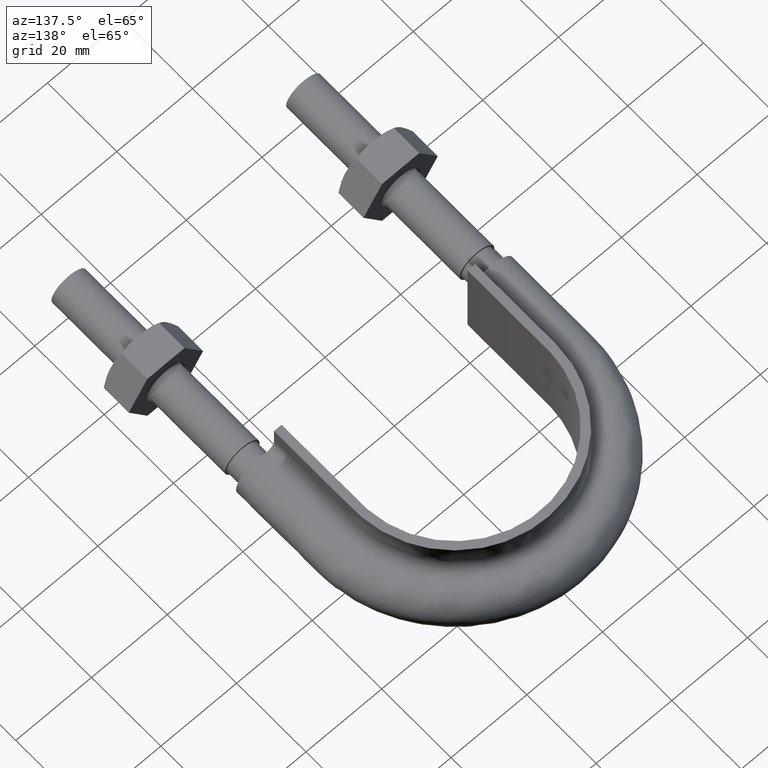
[diagram: clean part render]
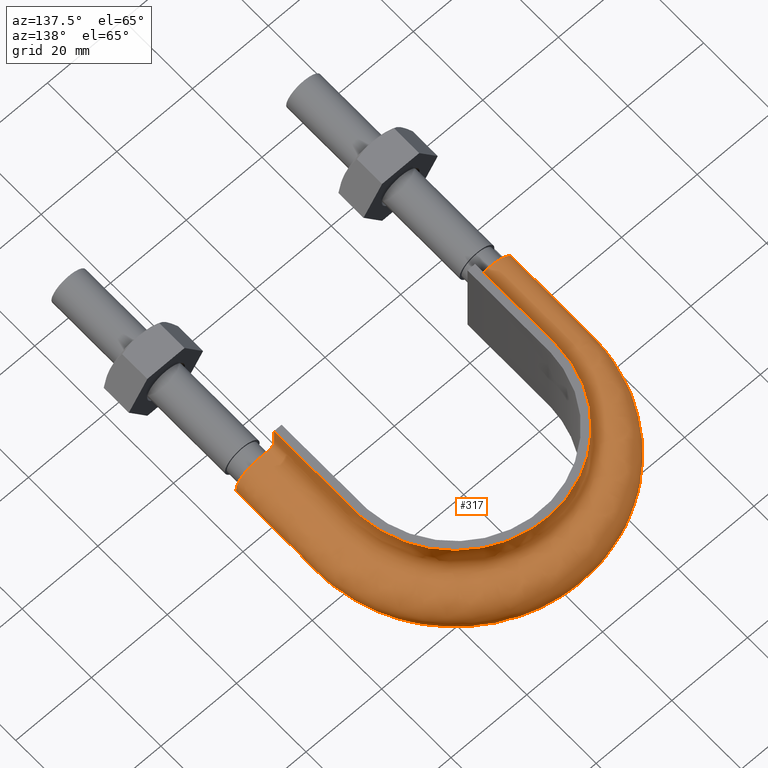
[diagram: same view with one face highlighted and labeled with its STEP entity id]
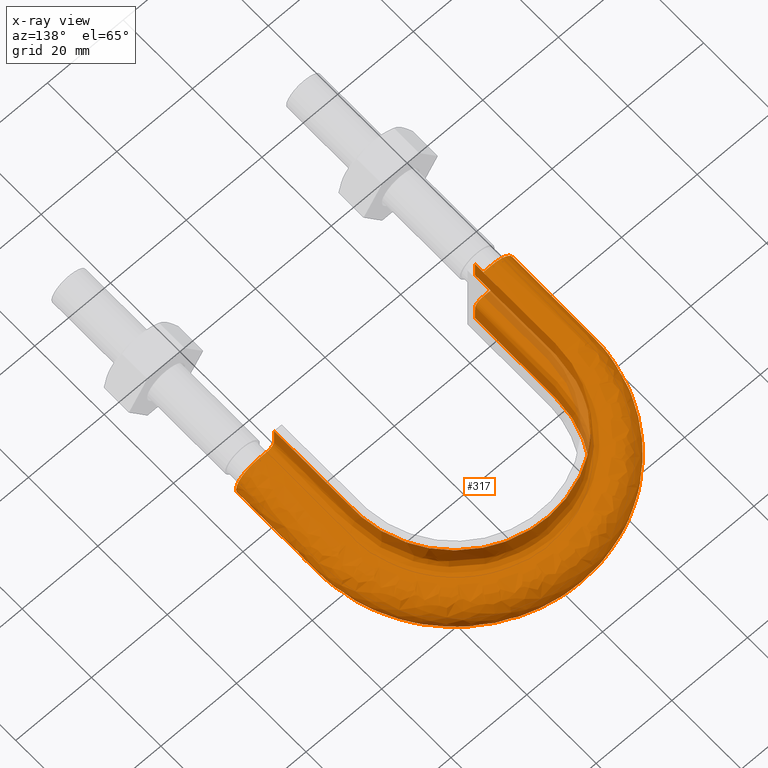
[diagram: x-ray of the same camera — body ghosted, the highlighted face saturated]
A machine part, auxiliary view. The second image highlights one B-rep face of the part: STEP entity #317.
The next image is the same camera in x-ray: the body ghosted, the highlighted face saturated — about 4% of this face is hidden behind the body in this view.
In plain terms, the highlighted face is a freeform B-spline surface patch.
Its self-contained STEP definition (entity closure, byte-faithful):
#317 = ADVANCED_FACE( '', ( #399 ), #400, .F. );
#399 = FACE_OUTER_BOUND( '', #573, .T. );
#400 = B_SPLINE_SURFACE_WITH_KNOTS( '', 3, 3, ( ( #574, #575, #576, #577, #578, #579, #580, #581, #582, #583, #584, #585, #586, #587, #588, #589, #590 ), ( #591, #592, #593, #594, #595, #596, #597, #598, #599, #600, #601, #602, #603, #604, #605, #606, #607 ), ( #608, #609, #610, #611, #612, #613, #614, #615, #616, #617, #618, #619, #620, #621, #622, #623, #624 ), ( #625, #626, #627, #628, #629, #630, #631, #632, #633, #634, #635, #636, #637, #638, #639, #640, #641 ), ( #642, #643, #644, #645, #646, #647, #648, #649, #650, #651, #652, #653, #654, #655, #656, #657, #658 ), ( #659, #660, #661, #662, #663, #664, #665, #666, #667, #668, #669, #670, #671, #672, #673, #674, #675 ), ( #676, #677, #678, #679, #680, #681, #682, #683, #684, #685, #686, #687, #688, #689, #690, #691, #692 ), ( #693, #694, #695, #696, #697, #698, #699, #700, #701, #702, #703, #704, #705, #706, #707, #708, #709 ), ( #710, #711, #712, #713, #714, #715, #716, #717, #718, #719, #720, #721, #722, #723, #724, #725, #726 ), ( #727, #728, #729, #730, #731, #732, #733, #734, #735, #736, #737, #738, #739, #740, #741, #742, #743 ), ( #744, #745, #746, #747, #748, #749, #750, #751, #752, #753, #754, #755, #756, #757, #758, #759, #760 ), ( #761, #762, #763, #764, #765, #766, #767, #768, #769, #770, #771, #772, #773, #774, #775, #776, #777 ), ( #778, #779, #780, #781, #782, #783, #784, #785, #786, #787, #788, #789, #790, #791, #792, #793, #794 ), ( #795, #796, #797, #798, #799, #800, #801, #802, #803, #804, #805, #806, #807, #808, #809, #810, #811 ), ( #812, #813, #814, #815, #816, #817, #818, #819, #820, #821, #822, #823, #824, #825, #826, #827, #828 ), ( #829, #830, #831, #832, #833, #834, #835, #836, #837, #838, #839, #840, #841, #842, #843, #844, #845 ), ( #846, #847, #848, #849, #850, #851, #852, #853, #854, #855, #856, #857, #858, #859, #860, #861, #862 ), ( #863, #864, #865, #866, #867, #868, #869, #870, #871, #872, #873, #874, #875, #876, #877, #878, #879 ), ( #880, #881, #882, #883, #884, #885, #886, #887, #888, #889, #890, #891, #892, #893, #894, #895, #896 ), ( #897, #898, #899, #900, #901, #902, #903, #904, #905, #906, #907, #908, #909, #910, #911, #912, #913 ), ( #914, #915, #916, #917, #918, #919, #920, #921, #922, #923, #924, #925, #926, #927, #928, #929, #930 ), ( #931, #932, #933, #934, #935, #936, #937, #938, #939, #940, #941, #942, #943, #944, #945, #946, #947 ), ( #948, #949, #950, #951, #952, #953, #954, #955, #956, #957, #958, #959, #960, #961, #962, #963, #964 ), ( #965, #966, #967, #968, #969, #970, #971, #972, #973, #974, #975, #976, #977, #978, #979, #980, #981 ), ( #982, #983, #984, #985, #986, #987, #988, #989, #990, #991, #992, #993, #994, #995, #996, #997, #998 ), ( #999, #1000, #1001, #1002, #1003, #1004, #1005, #1006, #1007, #1008, #1009, #1010, #1011, #1012, #1013, #1014, #1015 ), ( #1016, #1017, #1018, #1019, #1020, #1021, #1022, #1023, #1024, #1025, #1026, #1027, #1028, #1029, #1030, #1031, #1032 ), ( #1033, #1034, #1035, #1036, #1037, #1038, #1039, #1040, #1041, #1042, #1043, #1044, #1045, #1046, #1047, #1048, #1049 ), ( #1050, #1051, #1052, #1053, #1054, #1055, #1056, #1057, #1058, #1059, #1060, #1061, #1062, #1063, #1064, #1065, #1066 ), ( #1067, #1068, #1069, #1070, #1071, #1072, #1073, #1074, #1075, #1076, #1077, #1078, #1079, #1080, #1081, #1082, #1083 ), ( #1084, #1085, #1086, #1087, #1088, #1089, #1090, #1091, #1092, #1093, #1094, #1095, #1096, #1097, #1098, #1099, #1100 ) ), .UNSPECIFIED., .F., .F., .F., ( 4, 3, 1, 1, 1, 3, 3, 1, 1, 1, 3, 3, 1, 1, 1, 3, 4 ), ( 4, 3, 1, 1, 1, 1, 1, 1, 1, 3, 4 ), ( 0.000000000000000, 0.0526315789473684, 0.105263157894737, 0.157894736842105, 0.210526315789474, 0.263157894736842, 0.315789473684211, 0.368421052631579, 0.421052631578947, 0.473684210526316, 0.526315789473684, 0.578947368421053, 0.631578947368421, 0.684210526315789, 0.736842105263158, 0.789473684210526, 0.842105263157895 ), ( 0.000000000000000, 1.00000000000000, 1.50000000000000, 2.00000000000000, 3.00000000000000, 4.00000000000000, 5.00000000000000, 6.00000000000000, 6.50000000000000, 7.00000000000000, 8.00000000000000 ), .UNSPECIFIED. );
#573 = EDGE_LOOP( '', ( #1582, #1583, #1584, #1585 ) );
#574 = CARTESIAN_POINT( '', ( -26.5500000000000, 50.3500000000000, 12.5000000000000 ) );
#575 = CARTESIAN_POINT( '', ( -26.5500000000000, 59.3833333333333, 12.5000000000000 ) );
#576 = CARTESIAN_POINT( '', ( -26.5500000000000, 68.4166666666667, 12.5000000000000 ) );
#577 = CARTESIAN_POINT( '', ( -26.5500000000000, 77.4500000000000, 12.5000000000000 ) );
#578 = CARTESIAN_POINT( '', ( -26.5500000000000, 79.7566352991258, 12.5000000000000 ) );
#579 = CARTESIAN_POINT( '', ( -25.9278217826460, 84.4015410955847, 12.5000000000000 ) );
#580 = CARTESIAN_POINT( '', ( -22.3733615438456, 93.0387447403505, 12.5000000000000 ) );
#581 = CARTESIAN_POINT( '', ( -13.8952542493119, 101.518591858921, 12.5000000000000 ) );
#582 = CARTESIAN_POINT( '', ( 2.02604182614537E-014, 105.240704070539, 12.5000000000000 ) );
#583 = CARTESIAN_POINT( '', ( 13.8952542493119, 101.518591858921, 12.5000000000000 ) );
#584 = CARTESIAN_POINT( '', ( 22.3733615438457, 93.0387447403505, 12.5000000000000 ) );
#585 = CARTESIAN_POINT( '', ( 25.9278217826460, 84.4015410955847, 12.5000000000000 ) );
#586 = CARTESIAN_POINT( '', ( 26.5500000000000, 79.7566352991258, 12.5000000000000 ) );
#587 = CARTESIAN_POINT( '', ( 26.5500000000000, 77.4500000000000, 12.5000000000000 ) );
#588 = CARTESIAN_POINT( '', ( 26.5500000000000, 68.4166666666667, 12.5000000000000 ) );
#589 = CARTESIAN_POINT( '', ( 26.5500000000000, 59.3833333333333, 12.5000000000000 ) );
#590 = CARTESIAN_POINT( '', ( 26.5500000000000, 50.3500000000000, 12.5000000000000 ) );
#591 = CARTESIAN_POINT( '', ( -26.5500000000000, 50.3500000000000, 10.8666666666667 ) );
#592 = CARTESIAN_POINT( '', ( -26.5500000000000, 59.3833333333333, 10.8666666666667 ) );
#593 = CARTESIAN_POINT( '', ( -26.5500000000000, 68.4166666666667, 10.8666666666667 ) );
#594 = CARTESIAN_POINT( '', ( -26.5500000000000, 77.4500000000000, 10.8666666666667 ) );
#595 = CARTESIAN_POINT( '', ( -26.5500000000000, 79.7566352991258, 10.8666666666667 ) );
#596 = CARTESIAN_POINT( '', ( -25.9278217826460, 84.4015410955847, 10.8666666666667 ) );
#597 = CARTESIAN_POINT( '', ( -22.3733615438456, 93.0387447403505, 10.8666666666667 ) );
#598 = CARTESIAN_POINT( '', ( -13.8952542493119, 101.518591858921, 10.8666666666667 ) );
#599 = CARTESIAN_POINT( '', ( 2.19951417374305E-014, 105.240704070539, 10.8666666666667 ) );
#600 = CARTESIAN_POINT( '', ( 13.8952542493119, 101.518591858921, 10.8666666666667 ) );
#601 = CARTESIAN_POINT( '', ( 22.3733615438457, 93.0387447403505, 10.8666666666667 ) );
#602 = CARTESIAN_POINT( '', ( 25.9278217826460, 84.4015410955847, 10.8666666666667 ) );
#603 = CARTESIAN_POINT( '', ( 26.5500000000000, 79.7566352991258, 10.8666666666667 ) );
#604 = CARTESIAN_POINT( '', ( 26.5500000000000, 77.4500000000000, 10.8666666666667 ) );
#605 = CARTESIAN_POINT( '', ( 26.5500000000000, 68.4166666666667, 10.8666666666667 ) );
#606 = CARTESIAN_POINT( '', ( 26.5500000000000, 59.3833333333333, 10.8666666666667 ) );
#607 = CARTESIAN_POINT( '', ( 26.5500000000000, 50.3500000000000, 10.8666666666667 ) );
#608 = CARTESIAN_POINT( '', ( -26.5500000000000, 50.3500000000000, 9.23333333333333 ) );
#609 = CARTESIAN_POINT( '', ( -26.5500000000000, 59.3833333333333, 9.23333333333333 ) );
#610 = CARTESIAN_POINT( '', ( -26.5500000000000, 68.4166666666667, 9.23333333333333 ) );
#611 = CARTESIAN_POINT( '', ( -26.5500000000000, 77.4500000000000, 9.23333333333333 ) );
#612 = CARTESIAN_POINT( '', ( -26.5500000000000, 79.7566352991258, 9.23333333333333 ) );
#613 = CARTESIAN_POINT( '', ( -25.9278217826460, 84.4015410955847, 9.23333333333332 ) );
#614 = CARTESIAN_POINT( '', ( -22.3733615438456, 93.0387447403505, 9.23333333333335 ) );
#615 = CARTESIAN_POINT( '', ( -13.8952542493119, 101.518591858921, 9.23333333333332 ) );
#616 = CARTESIAN_POINT( '', ( 2.15614608684363E-014, 105.240704070539, 9.23333333333334 ) );
#617 = CARTESIAN_POINT( '', ( 13.8952542493119, 101.518591858921, 9.23333333333332 ) );
#618 = CARTESIAN_POINT( '', ( 22.3733615438457, 93.0387447403505, 9.23333333333334 ) );
#619 = CARTESIAN_POINT( '', ( 25.9278217826460, 84.4015410955847, 9.23333333333333 ) );
#620 = CARTESIAN_POINT( '', ( 26.5500000000000, 79.7566352991258, 9.23333333333333 ) );
#621 = CARTESIAN_POINT( '', ( 26.5500000000000, 77.4500000000000, 9.23333333333333 ) );
#622 = CARTESIAN_POINT( '', ( 26.5500000000000, 68.4166666666667, 9.23333333333333 ) );
#623 = CARTESIAN_POINT( '', ( 26.5500000000000, 59.3833333333333, 9.23333333333333 ) );
#624 = CARTESIAN_POINT( '', ( 26.5500000000000, 50.3500000000000, 9.23333333333333 ) );
#625 = CARTESIAN_POINT( '', ( -26.5500000000000, 50.3500000000000, 7.59999999999999 ) );
#626 = CARTESIAN_POINT( '', ( -26.5500000000000, 59.3833333333333, 7.59999999999999 ) );
#627 = CARTESIAN_POINT( '', ( -26.5500000000000, 68.4166666666667, 7.59999999999999 ) );
#628 = CARTESIAN_POINT( '', ( -26.5500000000000, 77.4500000000000, 7.59999999999999 ) );
#629 = CARTESIAN_POINT( '', ( -26.5500000000000, 79.7566352991258, 7.60000000000000 ) );
#630 = CARTESIAN_POINT( '', ( -25.9278217826459, 84.4015410955847, 7.59999999999998 ) );
#631 = CARTESIAN_POINT( '', ( -22.3733615438456, 93.0387447403505, 7.60000000000001 ) );
#632 = CARTESIAN_POINT( '', ( -13.8952542493119, 101.518591858921, 7.59999999999999 ) );
#633 = CARTESIAN_POINT( '', ( 2.24288226064247E-014, 105.240704070539, 7.60000000000000 ) );
#634 = CARTESIAN_POINT( '', ( 13.8952542493119, 101.518591858921, 7.59999999999999 ) );
#635 = CARTESIAN_POINT( '', ( 22.3733615438457, 93.0387447403505, 7.60000000000000 ) );
#636 = CARTESIAN_POINT( '', ( 25.9278217826460, 84.4015410955847, 7.59999999999999 ) );
#637 = CARTESIAN_POINT( '', ( 26.5500000000000, 79.7566352991258, 7.60000000000000 ) );
#638 = CARTESIAN_POINT( '', ( 26.5500000000000, 77.4500000000000, 7.60000000000000 ) );
#639 = CARTESIAN_POINT( '', ( 26.5500000000000, 68.4166666666667, 7.59999999999999 ) );
#640 = CARTESIAN_POINT( '', ( 26.5500000000000, 59.3833333333333, 7.59999999999999 ) );
#641 = CARTESIAN_POINT( '', ( 26.5500000000000, 50.3500000000000, 7.59999999999999 ) );
#642 = CARTESIAN_POINT( '', ( -26.5500000000000, 50.3500000000000, 7.33823584172332 ) );
#643 = CARTESIAN_POINT( '', ( -26.5500000000000, 59.3833333333333, 7.33823584172332 ) );
#644 = CARTESIAN_POINT( '', ( -26.5500000000000, 68.4166666666667, 7.33823584172332 ) );
#645 = CARTESIAN_POINT( '', ( -26.5500000000000, 77.4500000000000, 7.33823584172332 ) );
#646 = CARTESIAN_POINT( '', ( -26.5500000000000, 79.7566352991258, 7.33823584172333 ) );
#647 = CARTESIAN_POINT( '', ( -25.9278217826460, 84.4015410955847, 7.33823584172332 ) );
#648 = CARTESIAN_POINT( '', ( -22.3733615438456, 93.0387447403505, 7.33823584172334 ) );
#649 = CARTESIAN_POINT( '', ( -13.8952542493119, 101.518591858921, 7.33823584172332 ) );
#650 = CARTESIAN_POINT( '', ( 2.02604182614537E-014, 105.240704070539, 7.33823584172333 ) );
#651 = CARTESIAN_POINT( '', ( 13.8952542493119, 101.518591858921, 7.33823584172332 ) );
#652 = CARTESIAN_POINT( '', ( 22.3733615438457, 93.0387447403505, 7.33823584172333 ) );
#653 = CARTESIAN_POINT( '', ( 25.9278217826460, 84.4015410955847, 7.33823584172332 ) );
#654 = CARTESIAN_POINT( '', ( 26.5500000000000, 79.7566352991258, 7.33823584172333 ) );
#655 = CARTESIAN_POINT( '', ( 26.5500000000000, 77.4500000000000, 7.33823584172333 ) );
#656 = CARTESIAN_POINT( '', ( 26.5500000000000, 68.4166666666667, 7.33823584172332 ) );
#657 = CARTESIAN_POINT( '', ( 26.5500000000000, 59.3833333333333, 7.33823584172332 ) );
#658 = CARTESIAN_POINT( '', ( 26.5500000000000, 50.3500000000000, 7.33823584172332 ) );
#659 = CARTESIAN_POINT( '', ( -26.6541362568359, 50.3500000000000, 6.81470752517000 ) );
#660 = CARTESIAN_POINT( '', ( -26.6541362568359, 59.3833333333333, 6.81470752517000 ) );
#661 = CARTESIAN_POINT( '', ( -26.6541362568359, 68.4166666666667, 6.81470752517000 ) );
#662 = CARTESIAN_POINT( '', ( -26.6541362568359, 77.4500000000000, 6.81470752517000 ) );
#663 = CARTESIAN_POINT( '', ( -26.6541362568359, 79.7659363744331, 6.81470752517000 ) );
#664 = CARTESIAN_POINT( '', ( -26.0295621710036, 84.4287040133886, 6.81470752516999 ) );
#665 = CARTESIAN_POINT( '', ( -22.4610902878325, 93.0999475731550, 6.81470752517001 ) );
#666 = CARTESIAN_POINT( '', ( -13.9497632697654, 101.612973700931, 6.81470752516999 ) );
#667 = CARTESIAN_POINT( '', ( 2.24421724645219E-014, 105.349717534789, 6.81470752517001 ) );
#668 = CARTESIAN_POINT( '', ( 13.9497632697655, 101.612973700930, 6.81470752516999 ) );
#669 = CARTESIAN_POINT( '', ( 22.4610902878326, 93.0999475731550, 6.81470752517000 ) );
#670 = CARTESIAN_POINT( '', ( 26.0295621710036, 84.4287040133886, 6.81470752516999 ) );
#671 = CARTESIAN_POINT( '', ( 26.6541362568359, 79.7659363744331, 6.81470752517000 ) );
#672 = CARTESIAN_POINT( '', ( 26.6541362568359, 77.4500000000000, 6.81470752517000 ) );
#673 = CARTESIAN_POINT( '', ( 26.6541362568359, 68.4166666666667, 6.81470752517000 ) );
#674 = CARTESIAN_POINT( '', ( 26.6541362568359, 59.3833333333333, 6.81470752517000 ) );
#675 = CARTESIAN_POINT( '', ( 26.6541362568359, 50.3500000000000, 6.81470752517000 ) );
#676 = CARTESIAN_POINT( '', ( -27.0989687109389, 50.3500000000000, 6.14896871093887 ) );
#677 = CARTESIAN_POINT( '', ( -27.0989687109389, 59.3833333333333, 6.14896871093887 ) );
#678 = CARTESIAN_POINT( '', ( -27.0989687109389, 68.4166666666667, 6.14896871093887 ) );
#679 = CARTESIAN_POINT( '', ( -27.0989687109389, 77.4500000000000, 6.14896871093887 ) );
#680 = CARTESIAN_POINT( '', ( -27.0989687109389, 79.8056672067145, 6.14896871093887 ) );
#681 = CARTESIAN_POINT( '', ( -26.4641603408403, 84.5447341815013, 6.14896871093886 ) );
#682 = CARTESIAN_POINT( '', ( -22.8358357767600, 93.3613839560413, 6.14896871093888 ) );
#683 = CARTESIAN_POINT( '', ( -14.1826061054485, 102.016138820163, 6.14896871093886 ) );
#684 = CARTESIAN_POINT( '', ( 2.24991982336415E-014, 105.815383656327, 6.14896871093887 ) );
#685 = CARTESIAN_POINT( '', ( 14.1826061054486, 102.016138820163, 6.14896871093886 ) );
#686 = CARTESIAN_POINT( '', ( 22.8358357767601, 93.3613839560413, 6.14896871093887 ) );
#687 = CARTESIAN_POINT( '', ( 26.4641603408403, 84.5447341815013, 6.14896871093886 ) );
#688 = CARTESIAN_POINT( '', ( 27.0989687109389, 79.8056672067145, 6.14896871093887 ) );
#689 = CARTESIAN_POINT( '', ( 27.0989687109389, 77.4500000000000, 6.14896871093887 ) );
#690 = CARTESIAN_POINT( '', ( 27.0989687109389, 68.4166666666666, 6.14896871093887 ) );
#691 = CARTESIAN_POINT( '', ( 27.0989687109389, 59.3833333333333, 6.14896871093887 ) );
#692 = CARTESIAN_POINT( '', ( 27.0989687109389, 50.3500000000000, 6.14896871093887 ) );
#693 = CARTESIAN_POINT( '', ( -27.7647075251700, 50.3500000000000, 5.70413625683590 ) );
#694 = CARTESIAN_POINT( '', ( -27.7647075251700, 59.3833333333333, 5.70413625683590 ) );
#695 = CARTESIAN_POINT( '', ( -27.7647075251700, 68.4166666666667, 5.70413625683590 ) );
#696 = CARTESIAN_POINT( '', ( -27.7647075251700, 77.4500000000000, 5.70413625683590 ) );
#697 = CARTESIAN_POINT( '', ( -27.7647075251700, 79.8651285992622, 5.70413625683590 ) );
#698 = CARTESIAN_POINT( '', ( -27.1145824662617, 84.7183855997418, 5.70413625683589 ) );
#699 = CARTESIAN_POINT( '', ( -23.3966820350219, 93.7526511532393, 5.70413625683591 ) );
#700 = CARTESIAN_POINT( '', ( -14.5310800351273, 102.619518060912, 5.70413625683589 ) );
#701 = CARTESIAN_POINT( '', ( 2.25845433283262E-014, 106.512302257299, 5.70413625683590 ) );
#702 = CARTESIAN_POINT( '', ( 14.5310800351273, 102.619518060912, 5.70413625683589 ) );
#703 = CARTESIAN_POINT( '', ( 23.3966820350219, 93.7526511532393, 5.70413625683590 ) );
#704 = CARTESIAN_POINT( '', ( 27.1145824662618, 84.7183855997418, 5.70413625683589 ) );
#705 = CARTESIAN_POINT( '', ( 27.7647075251700, 79.8651285992622, 5.70413625683590 ) );
#706 = CARTESIAN_POINT( '', ( 27.7647075251700, 77.4500000000000, 5.70413625683590 ) );
#707 = CARTESIAN_POINT( '', ( 27.7647075251700, 68.4166666666666, 5.70413625683590 ) );
#708 = CARTESIAN_POINT( '', ( 27.7647075251700, 59.3833333333333, 5.70413625683590 ) );
#709 = CARTESIAN_POINT( '', ( 27.7647075251700, 50.3500000000000, 5.70413625683590 ) );
#710 = CARTESIAN_POINT( '', ( -28.2882358417233, 50.3500000000000, 5.59999999999999 ) );
#711 = CARTESIAN_POINT( '', ( -28.2882358417233, 59.3833333333333, 5.59999999999999 ) );
#712 = CARTESIAN_POINT( '', ( -28.2882358417233, 68.4166666666667, 5.59999999999999 ) );
#713 = CARTESIAN_POINT( '', ( -28.2882358417233, 77.4500000000000, 5.59999999999999 ) );
#714 = CARTESIAN_POINT( '', ( -28.2882358417233, 79.9118882624740, 5.59999999999999 ) );
#715 = CARTESIAN_POINT( '', ( -27.6260659385964, 84.8549428091386, 5.59999999999998 ) );
#716 = CARTESIAN_POINT( '', ( -23.8377242142617, 94.0603385716275, 5.60000000000000 ) );
#717 = CARTESIAN_POINT( '', ( -14.8051153863305, 103.094007622585, 5.59999999999998 ) );
#718 = CARTESIAN_POINT( '', ( 2.52537428111177E-014, 107.060349951293, 5.60000000000000 ) );
#719 = CARTESIAN_POINT( '', ( 14.8051153863305, 103.094007622585, 5.59999999999998 ) );
#720 = CARTESIAN_POINT( '', ( 23.8377242142617, 94.0603385716275, 5.59999999999999 ) );
#721 = CARTESIAN_POINT( '', ( 27.6260659385965, 84.8549428091385, 5.59999999999999 ) );
#722 = CARTESIAN_POINT( '', ( 28.2882358417234, 79.9118882624740, 5.59999999999999 ) );
#723 = CARTESIAN_POINT( '', ( 28.2882358417234, 77.4500000000000, 5.59999999999999 ) );
#724 = CARTESIAN_POINT( '', ( 28.2882358417233, 68.4166666666666, 5.59999999999999 ) );
#725 = CARTESIAN_POINT( '', ( 28.2882358417233, 59.3833333333333, 5.59999999999999 ) );
#726 = CARTESIAN_POINT( '', ( 28.2882358417233, 50.3500000000000, 5.59999999999999 ) );
#727 = CARTESIAN_POINT( '', ( -28.5500000000000, 50.3500000000000, 5.59999999999999 ) );
#728 = CARTESIAN_POINT( '', ( -28.5500000000000, 59.3833333333333, 5.59999999999999 ) );
#729 = CARTESIAN_POINT( '', ( -28.5500000000000, 68.4166666666667, 5.59999999999999 ) );
#730 = CARTESIAN_POINT( '', ( -28.5500000000000, 77.4500000000000, 5.59999999999999 ) );
#731 = CARTESIAN_POINT( '', ( -28.5500000000000, 79.9352680940799, 5.59999999999999 ) );
#732 = CARTESIAN_POINT( '', ( -27.8818076747638, 84.9232214138370, 5.59999999999998 ) );
#733 = CARTESIAN_POINT( '', ( -24.0582453038816, 94.2141822808216, 5.60000000000000 ) );
#734 = CARTESIAN_POINT( '', ( -14.9421330619321, 103.331252403421, 5.59999999999998 ) );
#735 = CARTESIAN_POINT( '', ( 2.26852147315656E-014, 107.334373798290, 5.60000000000000 ) );
#736 = CARTESIAN_POINT( '', ( 14.9421330619321, 103.331252403421, 5.59999999999998 ) );
#737 = CARTESIAN_POINT( '', ( 24.0582453038817, 94.2141822808216, 5.59999999999999 ) );
#738 = CARTESIAN_POINT( '', ( 27.8818076747638, 84.9232214138369, 5.59999999999999 ) );
#739 = CARTESIAN_POINT( '', ( 28.5500000000000, 79.9352680940799, 5.59999999999999 ) );
#740 = CARTESIAN_POINT( '', ( 28.5500000000000, 77.4500000000000, 5.59999999999999 ) );
#741 = CARTESIAN_POINT( '', ( 28.5500000000000, 68.4166666666666, 5.59999999999999 ) );
#742 = CARTESIAN_POINT( '', ( 28.5500000000000, 59.3833333333333, 5.59999999999999 ) );
#743 = CARTESIAN_POINT( '', ( 28.5500000000000, 50.3500000000000, 5.59999999999999 ) );
#744 = CARTESIAN_POINT( '', ( -29.3666666666667, 50.3500000000000, 5.60000000000001 ) );
#745 = CARTESIAN_POINT( '', ( -29.3666666666667, 59.3833333333333, 5.60000000000001 ) );
#746 = CARTESIAN_POINT( '', ( -29.3666666666667, 68.4166666666667, 5.60000000000001 ) );
#747 = CARTESIAN_POINT( '', ( -29.3666666666667, 77.4500000000000, 5.60000000000001 ) );
#748 = CARTESIAN_POINT( '', ( -29.3666666666667, 80.0082098186861, 5.60000000000001 ) );
#749 = CARTESIAN_POINT( '', ( -28.6796852473785, 85.1362408771233, 5.60000000000000 ) );
#750 = CARTESIAN_POINT( '', ( -24.7462395058963, 94.6941526098473, 5.60000000000002 ) );
#751 = CARTESIAN_POINT( '', ( -15.3696085770853, 104.071422125758, 5.60000000000000 ) );
#752 = CARTESIAN_POINT( '', ( 2.01878229686996E-014, 108.189288937121, 5.60000000000001 ) );
#753 = CARTESIAN_POINT( '', ( 15.3696085770854, 104.071422125758, 5.60000000000000 ) );
#754 = CARTESIAN_POINT( '', ( 24.7462395058964, 94.6941526098473, 5.60000000000001 ) );
#755 = CARTESIAN_POINT( '', ( 28.6796852473786, 85.1362408771233, 5.60000000000000 ) );
#756 = CARTESIAN_POINT( '', ( 29.3666666666667, 80.0082098186861, 5.60000000000001 ) );
#757 = CARTESIAN_POINT( '', ( 29.3666666666667, 77.4500000000000, 5.60000000000001 ) );
#758 = CARTESIAN_POINT( '', ( 29.3666666666667, 68.4166666666667, 5.60000000000001 ) );
#759 = CARTESIAN_POINT( '', ( 29.3666666666667, 59.3833333333333, 5.60000000000001 ) );
#760 = CARTESIAN_POINT( '', ( 29.3666666666667, 50.3500000000000, 5.60000000000001 ) );
#761 = CARTESIAN_POINT( '', ( -30.1833333333333, 50.3500000000000, 5.60000000000001 ) );
#762 = CARTESIAN_POINT( '', ( -30.1833333333333, 59.3833333333333, 5.60000000000001 ) );
#763 = CARTESIAN_POINT( '', ( -30.1833333333333, 68.4166666666667, 5.60000000000001 ) );
#764 = CARTESIAN_POINT( '', ( -30.1833333333333, 77.4500000000000, 5.60000000000001 ) );
#765 = CARTESIAN_POINT( '', ( -30.1833333333333, 80.0811515432924, 5.60000000000001 ) );
#766 = CARTESIAN_POINT( '', ( -29.4775628199933, 85.3492603404096, 5.60000000000000 ) );
#767 = CARTESIAN_POINT( '', ( -25.4342337079110, 95.1741229388730, 5.60000000000002 ) );
#768 = CARTESIAN_POINT( '', ( -15.7970840922386, 104.811591848095, 5.60000000000000 ) );
#769 = CARTESIAN_POINT( '', ( 2.02925164197988E-014, 109.044204075952, 5.60000000000001 ) );
#770 = CARTESIAN_POINT( '', ( 15.7970840922386, 104.811591848095, 5.60000000000000 ) );
#771 = CARTESIAN_POINT( '', ( 25.4342337079110, 95.1741229388730, 5.60000000000001 ) );
#772 = CARTESIAN_POINT( '', ( 29.4775628199934, 85.3492603404096, 5.60000000000000 ) );
#773 = CARTESIAN_POINT( '', ( 30.1833333333334, 80.0811515432924, 5.60000000000001 ) );
#774 = CARTESIAN_POINT( '', ( 30.1833333333334, 77.4500000000000, 5.60000000000001 ) );
#775 = CARTESIAN_POINT( '', ( 30.1833333333333, 68.4166666666667, 5.60000000000001 ) );
#776 = CARTESIAN_POINT( '', ( 30.1833333333333, 59.3833333333333, 5.60000000000001 ) );
#777 = CARTESIAN_POINT( '', ( 30.1833333333333, 50.3500000000000, 5.60000000000001 ) );
#778 = CARTESIAN_POINT( '', ( -31.0000000000000, 50.3500000000000, 5.60000000000001 ) );
#779 = CARTESIAN_POINT( '', ( -31.0000000000000, 59.3833333333333, 5.60000000000001 ) );
#780 = CARTESIAN_POINT( '', ( -31.0000000000000, 68.4166666666667, 5.60000000000001 ) );
#781 = CARTESIAN_POINT( '', ( -31.0000000000000, 77.4500000000000, 5.60000000000001 ) );
#782 = CARTESIAN_POINT( '', ( -31.0000000000000, 80.1540932678986, 5.60000000000001 ) );
#783 = CARTESIAN_POINT( '', ( -30.2754403926081, 85.5622798036959, 5.60000000000000 ) );
#784 = CARTESIAN_POINT( '', ( -26.1222279099257, 95.6540932678986, 5.60000000000002 ) );
#785 = CARTESIAN_POINT( '', ( -16.2245596073919, 105.551761570432, 5.60000000000000 ) );
#786 = CARTESIAN_POINT( '', ( 1.95298481329095E-014, 109.899119214784, 5.60000000000001 ) );
#787 = CARTESIAN_POINT( '', ( 16.2245596073919, 105.551761570432, 5.60000000000000 ) );
#788 = CARTESIAN_POINT( '', ( 26.1222279099257, 95.6540932678986, 5.60000000000001 ) );
#789 = CARTESIAN_POINT( '', ( 30.2754403926081, 85.5622798036959, 5.60000000000000 ) );
#790 = CARTESIAN_POINT( '', ( 31.0000000000000, 80.1540932678986, 5.60000000000001 ) );
#791 = CARTESIAN_POINT( '', ( 31.0000000000000, 77.4500000000000, 5.60000000000001 ) );
#792 = CARTESIAN_POINT( '', ( 31.0000000000000, 68.4166666666667, 5.60000000000001 ) );
#793 = CARTESIAN_POINT( '', ( 31.0000000000000, 59.3833333333333, 5.60000000000001 ) );
#794 = CARTESIAN_POINT( '', ( 31.0000000000000, 50.3500000000000, 5.60000000000001 ) );
#795 = CARTESIAN_POINT( '', ( -32.4627416997969, 50.3500000000000, 5.60000000000001 ) );
#796 = CARTESIAN_POINT( '', ( -32.4627416997969, 59.3833333333333, 5.60000000000001 ) );
#797 = CARTESIAN_POINT( '', ( -32.4627416997969, 68.4166666666667, 5.60000000000001 ) );
#798 = CARTESIAN_POINT( '', ( -32.4627416997969, 77.4500000000000, 5.60000000000001 ) );
#799 = CARTESIAN_POINT( '', ( -32.4627416997969, 80.2847400869640, 5.60000000000001 ) );
#800 = CARTESIAN_POINT( '', ( -31.7045287152159, 85.9438215814314, 5.60000000000000 ) );
#801 = CARTESIAN_POINT( '', ( -27.3545027774834, 96.5137740208755, 5.60000000000002 ) );
#802 = CARTESIAN_POINT( '', ( -16.9902162543186, 106.877488653440, 5.60000000000000 ) );
#803 = CARTESIAN_POINT( '', ( 2.05847275973695E-014, 111.430368222975, 5.60000000000002 ) );
#804 = CARTESIAN_POINT( '', ( 16.9902162543186, 106.877488653440, 5.60000000000000 ) );
#805 = CARTESIAN_POINT( '', ( 27.3545027774834, 96.5137740208755, 5.60000000000001 ) );
#806 = CARTESIAN_POINT( '', ( 31.7045287152160, 85.9438215814314, 5.60000000000001 ) );
#807 = CARTESIAN_POINT( '', ( 32.4627416997970, 80.2847400869640, 5.60000000000001 ) );
#808 = CARTESIAN_POINT( '', ( 32.4627416997970, 77.4500000000000, 5.60000000000001 ) );
#809 = CARTESIAN_POINT( '', ( 32.4627416997970, 68.4166666666667, 5.60000000000001 ) );
#810 = CARTESIAN_POINT( '', ( 32.4627416997970, 59.3833333333333, 5.60000000000001 ) );
#811 = CARTESIAN_POINT( '', ( 32.4627416997970, 50.3500000000000, 5.60000000000001 ) );
#812 = CARTESIAN_POINT( '', ( -35.3882250993908, 50.3500000000000, 4.38822509939087 ) );
#813 = CARTESIAN_POINT( '', ( -35.3882250993908, 59.3833333333333, 4.38822509939087 ) );
#814 = CARTESIAN_POINT( '', ( -35.3882250993908, 68.4166666666667, 4.38822509939087 ) );
#815 = CARTESIAN_POINT( '', ( -35.3882250993908, 77.4500000000000, 4.38822509939087 ) );
#816 = CARTESIAN_POINT( '', ( -35.3882250993908, 80.5460337250946, 4.38822509939087 ) );
#817 = CARTESIAN_POINT( '', ( -34.5627053604316, 86.7069051369022, 4.38822509939086 ) );
#818 = CARTESIAN_POINT( '', ( -29.8190525125987, 98.2331355268293, 4.38822509939087 ) );
#819 = CARTESIAN_POINT( '', ( -18.5215295481721, 109.528942819456, 4.38822509939086 ) );
#820 = CARTESIAN_POINT( '', ( 1.83576778363474E-014, 114.492866239358, 4.38822509939087 ) );
#821 = CARTESIAN_POINT( '', ( 18.5215295481722, 109.528942819456, 4.38822509939086 ) );
#822 = CARTESIAN_POINT( '', ( 29.8190525125987, 98.2331355268293, 4.38822509939087 ) );
#823 = CARTESIAN_POINT( '', ( 34.5627053604317, 86.7069051369022, 4.38822509939086 ) );
#824 = CARTESIAN_POINT( '', ( 35.3882250993909, 80.5460337250946, 4.38822509939087 ) );
#825 = CARTESIAN_POINT( '', ( 35.3882250993909, 77.4500000000000, 4.38822509939087 ) );
#826 = CARTESIAN_POINT( '', ( 35.3882250993909, 68.4166666666667, 4.38822509939087 ) );
#827 = CARTESIAN_POINT( '', ( 35.3882250993909, 59.3833333333333, 4.38822509939087 ) );
#828 = CARTESIAN_POINT( '', ( 35.3882250993909, 50.3500000000000, 4.38822509939087 ) );
#829 = CARTESIAN_POINT( '', ( -37.2058874503046, 50.3500000000000, 9.94452457394278E-015 ) );
#830 = CARTESIAN_POINT( '', ( -37.2058874503046, 59.3833333333333, 9.94452457394278E-015 ) );
#831 = CARTESIAN_POINT( '', ( -37.2058874503046, 68.4166666666667, 9.94452457394278E-015 ) );
#832 = CARTESIAN_POINT( '', ( -37.2058874503046, 77.4500000000000, 9.94452457394278E-015 ) );
#833 = CARTESIAN_POINT( '', ( -37.2058874503046, 80.7083807781078, 9.94452457394278E-015 ) );
#834 = CARTESIAN_POINT( '', ( -36.3385486555912, 87.1810244737521, 9.94452457394277E-015 ) );
#835 = CARTESIAN_POINT( '', ( -31.3503274007403, 99.3014098084117, 9.94452457394280E-015 ) );
#836 = CARTESIAN_POINT( '', ( -19.4729656500066, 111.176345232818, 9.94452457394277E-015 ) );
#837 = CARTESIAN_POINT( '', ( 1.77233332548286E-014, 116.395658559048, 9.94452457394279E-015 ) );
#838 = CARTESIAN_POINT( '', ( 19.4729656500067, 111.176345232818, 9.94452457394277E-015 ) );
#839 = CARTESIAN_POINT( '', ( 31.3503274007404, 99.3014098084117, 9.94452457394279E-015 ) );
#840 = CARTESIAN_POINT( '', ( 36.3385486555912, 87.1810244737521, 9.94452457394277E-015 ) );
#841 = CARTESIAN_POINT( '', ( 37.2058874503046, 80.7083807781078, 9.94452457394278E-015 ) );
#842 = CARTESIAN_POINT( '', ( 37.2058874503046, 77.4500000000000, 9.94452457394278E-015 ) );
#843 = CARTESIAN_POINT( '', ( 37.2058874503046, 68.4166666666667, 9.94452457394278E-015 ) );
#844 = CARTESIAN_POINT( '', ( 37.2058874503046, 59.3833333333333, 9.94452457394278E-015 ) );
#845 = CARTESIAN_POINT( '', ( 37.2058874503046, 50.3500000000000, 9.94452457394278E-015 ) );
#846 = CARTESIAN_POINT( '', ( -35.3882250993908, 50.3500000000000, -4.38822509939085 ) );
#847 = CARTESIAN_POINT( '', ( -35.3882250993908, 59.3833333333333, -4.38822509939085 ) );
#848 = CARTESIAN_POINT( '', ( -35.3882250993908, 68.4166666666667, -4.38822509939085 ) );
#849 = CARTESIAN_POINT( '', ( -35.3882250993908, 77.4500000000000, -4.38822509939085 ) );
#850 = CARTESIAN_POINT( '', ( -35.3882250993908, 80.5460337250946, -4.38822509939085 ) );
#851 = CARTESIAN_POINT( '', ( -34.5627053604316, 86.7069051369022, -4.38822509939084 ) );
#852 = CARTESIAN_POINT( '', ( -29.8190525125987, 98.2331355268293, -4.38822509939085 ) );
#853 = CARTESIAN_POINT( '', ( -18.5215295481721, 109.528942819456, -4.38822509939084 ) );
#854 = CARTESIAN_POINT( '', ( 1.92250395743358E-014, 114.492866239358, -4.38822509939085 ) );
#855 = CARTESIAN_POINT( '', ( 18.5215295481722, 109.528942819456, -4.38822509939084 ) );
#856 = CARTESIAN_POINT( '', ( 29.8190525125987, 98.2331355268293, -4.38822509939085 ) );
#857 = CARTESIAN_POINT( '', ( 34.5627053604317, 86.7069051369022, -4.38822509939084 ) );
#858 = CARTESIAN_POINT( '', ( 35.3882250993909, 80.5460337250946, -4.38822509939085 ) );
#859 = CARTESIAN_POINT( '', ( 35.3882250993909, 77.4500000000000, -4.38822509939085 ) );
#860 = CARTESIAN_POINT( '', ( 35.3882250993909, 68.4166666666667, -4.38822509939085 ) );
#861 = CARTESIAN_POINT( '', ( 35.3882250993909, 59.3833333333333, -4.38822509939085 ) );
#862 = CARTESIAN_POINT( '', ( 35.3882250993909, 50.3500000000000, -4.38822509939085 ) );
#863 = CARTESIAN_POINT( '', ( -32.4627416997969, 50.3500000000000, -5.59999999999999 ) );
#864 = CARTESIAN_POINT( '', ( -32.4627416997969, 59.3833333333333, -5.59999999999999 ) );
#865 = CARTESIAN_POINT( '', ( -32.4627416997969, 68.4166666666667, -5.59999999999999 ) );
#866 = CARTESIAN_POINT( '', ( -32.4627416997969, 77.4500000000000, -5.59999999999999 ) );
#867 = CARTESIAN_POINT( '', ( -32.4627416997969, 80.2847400869640, -5.59999999999999 ) );
#868 = CARTESIAN_POINT( '', ( -31.7045287152159, 85.9438215814314, -5.59999999999998 ) );
#869 = CARTESIAN_POINT( '', ( -27.3545027774834, 96.5137740208755, -5.60000000000000 ) );
#870 = CARTESIAN_POINT( '', ( -16.9902162543186, 106.877488653440, -5.59999999999998 ) );
#871 = CARTESIAN_POINT( '', ( 1.88500041213927E-014, 111.430368222975, -5.60000000000000 ) );
#872 = CARTESIAN_POINT( '', ( 16.9902162543186, 106.877488653440, -5.59999999999998 ) );
#873 = CARTESIAN_POINT( '', ( 27.3545027774834, 96.5137740208755, -5.59999999999999 ) );
#874 = CARTESIAN_POINT( '', ( 31.7045287152160, 85.9438215814314, -5.59999999999999 ) );
#875 = CARTESIAN_POINT( '', ( 32.4627416997970, 80.2847400869640, -5.59999999999999 ) );
#876 = CARTESIAN_POINT( '', ( 32.4627416997970, 77.4500000000000, -5.59999999999999 ) );
#877 = CARTESIAN_POINT( '', ( 32.4627416997970, 68.4166666666667, -5.59999999999999 ) );
#878 = CARTESIAN_POINT( '', ( 32.4627416997970, 59.3833333333333, -5.59999999999999 ) );
#879 = CARTESIAN_POINT( '', ( 32.4627416997970, 50.3500000000000, -5.59999999999999 ) );
#880 = CARTESIAN_POINT( '', ( -31.0000000000000, 50.3500000000000, -5.59999999999999 ) );
#881 = CARTESIAN_POINT( '', ( -31.0000000000000, 59.3833333333333, -5.59999999999999 ) );
#882 = CARTESIAN_POINT( '', ( -31.0000000000000, 68.4166666666667, -5.59999999999999 ) );
#883 = CARTESIAN_POINT( '', ( -31.0000000000000, 77.4500000000000, -5.59999999999999 ) );
#884 = CARTESIAN_POINT( '', ( -31.0000000000000, 80.1540932678986, -5.59999999999999 ) );
#885 = CARTESIAN_POINT( '', ( -30.2754403926081, 85.5622798036959, -5.59999999999998 ) );
#886 = CARTESIAN_POINT( '', ( -26.1222279099257, 95.6540932678986, -5.60000000000000 ) );
#887 = CARTESIAN_POINT( '', ( -16.2245596073919, 105.551761570432, -5.59999999999999 ) );
#888 = CARTESIAN_POINT( '', ( 2.03972098708979E-014, 109.899119214784, -5.60000000000000 ) );
#889 = CARTESIAN_POINT( '', ( 16.2245596073919, 105.551761570432, -5.59999999999998 ) );
#890 = CARTESIAN_POINT( '', ( 26.1222279099257, 95.6540932678986, -5.59999999999999 ) );
#891 = CARTESIAN_POINT( '', ( 30.2754403926081, 85.5622798036959, -5.59999999999999 ) );
#892 = CARTESIAN_POINT( '', ( 31.0000000000000, 80.1540932678986, -5.59999999999999 ) );
#893 = CARTESIAN_POINT( '', ( 31.0000000000000, 77.4500000000000, -5.59999999999999 ) );
#894 = CARTESIAN_POINT( '', ( 31.0000000000000, 68.4166666666667, -5.59999999999999 ) );
#895 = CARTESIAN_POINT( '', ( 31.0000000000000, 59.3833333333333, -5.59999999999999 ) );
#896 = CARTESIAN_POINT( '', ( 31.0000000000000, 50.3500000000000, -5.59999999999999 ) );
#897 = CARTESIAN_POINT( '', ( -30.1833333333333, 50.3500000000000, -5.59999999999999 ) );
#898 = CARTESIAN_POINT( '', ( -30.1833333333333, 59.3833333333333, -5.59999999999999 ) );
#899 = CARTESIAN_POINT( '', ( -30.1833333333333, 68.4166666666667, -5.59999999999999 ) );
#900 = CARTESIAN_POINT( '', ( -30.1833333333333, 77.4500000000000, -5.59999999999999 ) );
#901 = CARTESIAN_POINT( '', ( -30.1833333333333, 80.0811515432924, -5.59999999999999 ) );
#902 = CARTESIAN_POINT( '', ( -29.4775628199933, 85.3492603404096, -5.59999999999998 ) );
#903 = CARTESIAN_POINT( '', ( -25.4342337079110, 95.1741229388730, -5.60000000000000 ) );
#904 = CARTESIAN_POINT( '', ( -15.7970840922386, 104.811591848095, -5.59999999999998 ) );
#905 = CARTESIAN_POINT( '', ( 2.46293251097408E-014, 109.044204075952, -5.59999999999999 ) );
#906 = CARTESIAN_POINT( '', ( 15.7970840922386, 104.811591848095, -5.59999999999998 ) );
#907 = CARTESIAN_POINT( '', ( 25.4342337079111, 95.1741229388730, -5.59999999999999 ) );
#908 = CARTESIAN_POINT( '', ( 29.4775628199934, 85.3492603404096, -5.59999999999998 ) );
#909 = CARTESIAN_POINT( '', ( 30.1833333333334, 80.0811515432924, -5.59999999999999 ) );
#910 = CARTESIAN_POINT( '', ( 30.1833333333334, 77.4500000000000, -5.59999999999999 ) );
#911 = CARTESIAN_POINT( '', ( 30.1833333333334, 68.4166666666666, -5.59999999999999 ) );
#912 = CARTESIAN_POINT( '', ( 30.1833333333333, 59.3833333333333, -5.59999999999999 ) );
#913 = CARTESIAN_POINT( '', ( 30.1833333333334, 50.3500000000000, -5.59999999999999 ) );
#914 = CARTESIAN_POINT( '', ( -29.3666666666667, 50.3500000000000, -5.59999999999999 ) );
#915 = CARTESIAN_POINT( '', ( -29.3666666666667, 59.3833333333333, -5.59999999999999 ) );
#916 = CARTESIAN_POINT( '', ( -29.3666666666667, 68.4166666666667, -5.59999999999999 ) );
#917 = CARTESIAN_POINT( '', ( -29.3666666666667, 77.4500000000000, -5.59999999999999 ) );
#918 = CARTESIAN_POINT( '', ( -29.3666666666667, 80.0082098186861, -5.59999999999999 ) );
#919 = CARTESIAN_POINT( '', ( -28.6796852473785, 85.1362408771233, -5.59999999999998 ) );
#920 = CARTESIAN_POINT( '', ( -24.7462395058963, 94.6941526098473, -5.60000000000000 ) );
#921 = CARTESIAN_POINT( '', ( -15.3696085770854, 104.071422125758, -5.59999999999998 ) );
#922 = CARTESIAN_POINT( '', ( 2.45246316586416E-014, 108.189288937121, -5.59999999999999 ) );
#923 = CARTESIAN_POINT( '', ( 15.3696085770854, 104.071422125758, -5.59999999999998 ) );
#924 = CARTESIAN_POINT( '', ( 24.7462395058964, 94.6941526098473, -5.59999999999999 ) );
#925 = CARTESIAN_POINT( '', ( 28.6796852473786, 85.1362408771233, -5.59999999999998 ) );
#926 = CARTESIAN_POINT( '', ( 29.3666666666667, 80.0082098186861, -5.59999999999999 ) );
#927 = CARTESIAN_POINT( '', ( 29.3666666666667, 77.4500000000000, -5.59999999999999 ) );
#928 = CARTESIAN_POINT( '', ( 29.3666666666667, 68.4166666666666, -5.59999999999999 ) );
#929 = CARTESIAN_POINT( '', ( 29.3666666666667, 59.3833333333333, -5.59999999999999 ) );
#930 = CARTESIAN_POINT( '', ( 29.3666666666667, 50.3500000000000, -5.59999999999999 ) );
#931 = CARTESIAN_POINT( '', ( -28.5500000000000, 50.3500000000000, -5.59999999999999 ) );
#932 = CARTESIAN_POINT( '', ( -28.5500000000000, 59.3833333333333, -5.59999999999999 ) );
#933 = CARTESIAN_POINT( '', ( -28.5500000000000, 68.4166666666667, -5.59999999999999 ) );
#934 = CARTESIAN_POINT( '', ( -28.5500000000000, 77.4500000000000, -5.59999999999999 ) );
#935 = CARTESIAN_POINT( '', ( -28.5500000000000, 79.9352680940799, -5.59999999999999 ) );
#936 = CARTESIAN_POINT( '', ( -27.8818076747638, 84.9232214138370, -5.59999999999998 ) );
#937 = CARTESIAN_POINT( '', ( -24.0582453038816, 94.2141822808216, -5.60000000000000 ) );
#938 = CARTESIAN_POINT( '', ( -14.9421330619321, 103.331252403421, -5.59999999999998 ) );
#939 = CARTESIAN_POINT( '', ( 2.26852147315656E-014, 107.334373798290, -5.59999999999999 ) );
#940 = CARTESIAN_POINT( '', ( 14.9421330619321, 103.331252403421, -5.59999999999998 ) );
#941 = CARTESIAN_POINT( '', ( 24.0582453038817, 94.2141822808216, -5.59999999999999 ) );
#942 = CARTESIAN_POINT( '', ( 27.8818076747638, 84.9232214138369, -5.59999999999998 ) );
#943 = CARTESIAN_POINT( '', ( 28.5500000000000, 79.9352680940799, -5.59999999999999 ) );
#944 = CARTESIAN_POINT( '', ( 28.5500000000000, 77.4500000000000, -5.59999999999999 ) );
#945 = CARTESIAN_POINT( '', ( 28.5500000000000, 68.4166666666666, -5.59999999999999 ) );
#946 = CARTESIAN_POINT( '', ( 28.5500000000000, 59.3833333333333, -5.59999999999999 ) );
#947 = CARTESIAN_POINT( '', ( 28.5500000000000, 50.3500000000000, -5.59999999999999 ) );
#948 = CARTESIAN_POINT( '', ( -28.2882358417233, 50.3500000000000, -5.59999999999999 ) );
#949 = CARTESIAN_POINT( '', ( -28.2882358417233, 59.3833333333333, -5.59999999999999 ) );
#950 = CARTESIAN_POINT( '', ( -28.2882358417233, 68.4166666666667, -5.59999999999999 ) );
#951 = CARTESIAN_POINT( '', ( -28.2882358417233, 77.4500000000000, -5.59999999999999 ) );
#952 = CARTESIAN_POINT( '', ( -28.2882358417233, 79.9118882624740, -5.59999999999999 ) );
#953 = CARTESIAN_POINT( '', ( -27.6260659385964, 84.8549428091386, -5.59999999999998 ) );
#954 = CARTESIAN_POINT( '', ( -23.8377242142617, 94.0603385716275, -5.60000000000000 ) );
#955 = CARTESIAN_POINT( '', ( -14.8051153863305, 103.094007622585, -5.59999999999998 ) );
#956 = CARTESIAN_POINT( '', ( 2.78558280250829E-014, 107.060349951293, -5.59999999999999 ) );
#957 = CARTESIAN_POINT( '', ( 14.8051153863305, 103.094007622585, -5.59999999999998 ) );
#958 = CARTESIAN_POINT( '', ( 23.8377242142618, 94.0603385716275, -5.59999999999999 ) );
#959 = CARTESIAN_POINT( '', ( 27.6260659385965, 84.8549428091385, -5.59999999999998 ) );
#960 = CARTESIAN_POINT( '', ( 28.2882358417234, 79.9118882624740, -5.59999999999999 ) );
#961 = CARTESIAN_POINT( '', ( 28.2882358417234, 77.4500000000000, -5.59999999999999 ) );
#962 = CARTESIAN_POINT( '', ( 28.2882358417234, 68.4166666666666, -5.59999999999999 ) );
#963 = CARTESIAN_POINT( '', ( 28.2882358417234, 59.3833333333333, -5.59999999999999 ) );
#964 = CARTESIAN_POINT( '', ( 28.2882358417234, 50.3500000000000, -5.59999999999999 ) );
#965 = CARTESIAN_POINT( '', ( -27.7647075251700, 50.3500000000000, -5.70413625683589 ) );
#966 = CARTESIAN_POINT( '', ( -27.7647075251700, 59.3833333333333, -5.70413625683589 ) );
#967 = CARTESIAN_POINT( '', ( -27.7647075251700, 68.4166666666667, -5.70413625683589 ) );
#968 = CARTESIAN_POINT( '', ( -27.7647075251700, 77.4500000000000, -5.70413625683589 ) );
#969 = CARTESIAN_POINT( '', ( -27.7647075251700, 79.8651285992622, -5.70413625683590 ) );
#970 = CARTESIAN_POINT( '', ( -27.1145824662617, 84.7183855997418, -5.70413625683589 ) );
#971 = CARTESIAN_POINT( '', ( -23.3966820350219, 93.7526511532393, -5.70413625683591 ) );
#972 = CARTESIAN_POINT( '', ( -14.5310800351273, 102.619518060912, -5.70413625683589 ) );
#973 = CARTESIAN_POINT( '', ( 2.69213520182682E-014, 106.512302257299, -5.70413625683590 ) );
#974 = CARTESIAN_POINT( '', ( 14.5310800351273, 102.619518060912, -5.70413625683589 ) );
#975 = CARTESIAN_POINT( '', ( 23.3966820350219, 93.7526511532393, -5.70413625683590 ) );
#976 = CARTESIAN_POINT( '', ( 27.1145824662618, 84.7183855997418, -5.70413625683589 ) );
#977 = CARTESIAN_POINT( '', ( 27.7647075251700, 79.8651285992622, -5.70413625683590 ) );
#978 = CARTESIAN_POINT( '', ( 27.7647075251700, 77.4500000000000, -5.70413625683590 ) );
#979 = CARTESIAN_POINT( '', ( 27.7647075251700, 68.4166666666666, -5.70413625683589 ) );
#980 = CARTESIAN_POINT( '', ( 27.7647075251700, 59.3833333333333, -5.70413625683589 ) );
#981 = CARTESIAN_POINT( '', ( 27.7647075251700, 50.3500000000000, -5.70413625683589 ) );
#982 = CARTESIAN_POINT( '', ( -27.0989687109389, 50.3500000000000, -6.14896871093886 ) );
#983 = CARTESIAN_POINT( '', ( -27.0989687109389, 59.3833333333333, -6.14896871093886 ) );
#984 = CARTESIAN_POINT( '', ( -27.0989687109389, 68.4166666666667, -6.14896871093886 ) );
#985 = CARTESIAN_POINT( '', ( -27.0989687109389, 77.4500000000000, -6.14896871093886 ) );
#986 = CARTESIAN_POINT( '', ( -27.0989687109389, 79.8056672067145, -6.14896871093886 ) );
#987 = CARTESIAN_POINT( '', ( -26.4641603408403, 84.5447341815013, -6.14896871093886 ) );
#988 = CARTESIAN_POINT( '', ( -22.8358357767600, 93.3613839560413, -6.14896871093888 ) );
#989 = CARTESIAN_POINT( '', ( -14.1826061054485, 102.016138820163, -6.14896871093886 ) );
#990 = CARTESIAN_POINT( '', ( 2.72696877925777E-014, 105.815383656327, -6.14896871093887 ) );
#991 = CARTESIAN_POINT( '', ( 14.1826061054486, 102.016138820163, -6.14896871093885 ) );
#992 = CARTESIAN_POINT( '', ( 22.8358357767601, 93.3613839560413, -6.14896871093887 ) );
#993 = CARTESIAN_POINT( '', ( 26.4641603408403, 84.5447341815013, -6.14896871093886 ) );
#994 = CARTESIAN_POINT( '', ( 27.0989687109389, 79.8056672067145, -6.14896871093886 ) );
#995 = CARTESIAN_POINT( '', ( 27.0989687109389, 77.4500000000000, -6.14896871093886 ) );
#996 = CARTESIAN_POINT( '', ( 27.0989687109389, 68.4166666666666, -6.14896871093886 ) );
#997 = CARTESIAN_POINT( '', ( 27.0989687109389, 59.3833333333333, -6.14896871093886 ) );
#998 = CARTESIAN_POINT( '', ( 27.0989687109389, 50.3500000000000, -6.14896871093886 ) );
#999 = CARTESIAN_POINT( '', ( -26.6541362568359, 50.3500000000000, -6.81470752516999 ) );
#1000 = CARTESIAN_POINT( '', ( -26.6541362568359, 59.3833333333333, -6.81470752516999 ) );
#1001 = CARTESIAN_POINT( '', ( -26.6541362568359, 68.4166666666667, -6.81470752516999 ) );
#1002 = CARTESIAN_POINT( '', ( -26.6541362568359, 77.4500000000000, -6.81470752516999 ) );
#1003 = CARTESIAN_POINT( '', ( -26.6541362568359, 79.7659363744332, -6.81470752517000 ) );
#1004 = CARTESIAN_POINT( '', ( -26.0295621710036, 84.4287040133886, -6.81470752516999 ) );
#1005 = CARTESIAN_POINT( '', ( -22.4610902878325, 93.0999475731551, -6.81470752517001 ) );
#1006 = CARTESIAN_POINT( '', ( -13.9497632697654, 101.612973700931, -6.81470752516999 ) );
#1007 = CARTESIAN_POINT( '', ( 2.80800237614465E-014, 105.349717534789, -6.81470752517000 ) );
#1008 = CARTESIAN_POINT( '', ( 13.9497632697655, 101.612973700930, -6.81470752516999 ) );
#1009 = CARTESIAN_POINT( '', ( 22.4610902878326, 93.0999475731550, -6.81470752517000 ) );
#1010 = CARTESIAN_POINT( '', ( 26.0295621710037, 84.4287040133886, -6.81470752516999 ) );
#1011 = CARTESIAN_POINT( '', ( 26.6541362568359, 79.7659363744331, -6.81470752517000 ) );
#1012 = CARTESIAN_POINT( '', ( 26.6541362568359, 77.4500000000000, -6.81470752517000 ) );
#1013 = CARTESIAN_POINT( '', ( 26.6541362568359, 68.4166666666666, -6.81470752516999 ) );
#1014 = CARTESIAN_POINT( '', ( 26.6541362568359, 59.3833333333333, -6.81470752516999 ) );
#1015 = CARTESIAN_POINT( '', ( 26.6541362568359, 50.3500000000000, -6.81470752516999 ) );
#1016 = CARTESIAN_POINT( '', ( -26.5500000000000, 50.3500000000000, -7.33823584172332 ) );
#1017 = CARTESIAN_POINT( '', ( -26.5500000000000, 59.3833333333333, -7.33823584172332 ) );
#1018 = CARTESIAN_POINT( '', ( -26.5500000000000, 68.4166666666667, -7.33823584172332 ) );
#1019 = CARTESIAN_POINT( '', ( -26.5500000000000, 77.4500000000000, -7.33823584172332 ) );
#1020 = CARTESIAN_POINT( '', ( -26.5500000000000, 79.7566352991258, -7.33823584172332 ) );
#1021 = CARTESIAN_POINT( '', ( -25.9278217826460, 84.4015410955848, -7.33823584172331 ) );
#1022 = CARTESIAN_POINT( '', ( -22.3733615438457, 93.0387447403505, -7.33823584172334 ) );
#1023 = CARTESIAN_POINT( '', ( -13.8952542493119, 101.518591858921, -7.33823584172331 ) );
#1024 = CARTESIAN_POINT( '', ( 2.71993121653610E-014, 105.240704070539, -7.33823584172333 ) );
#1025 = CARTESIAN_POINT( '', ( 13.8952542493119, 101.518591858921, -7.33823584172331 ) );
#1026 = CARTESIAN_POINT( '', ( 22.3733615438457, 93.0387447403505, -7.33823584172333 ) );
#1027 = CARTESIAN_POINT( '', ( 25.9278217826460, 84.4015410955847, -7.33823584172331 ) );
#1028 = CARTESIAN_POINT( '', ( 26.5500000000000, 79.7566352991258, -7.33823584172332 ) );
#1029 = CARTESIAN_POINT( '', ( 26.5500000000000, 77.4500000000000, -7.33823584172332 ) );
#1030 = CARTESIAN_POINT( '', ( 26.5500000000000, 68.4166666666666, -7.33823584172332 ) );
#1031 = CARTESIAN_POINT( '', ( 26.5500000000000, 59.3833333333333, -7.33823584172332 ) );
#1032 = CARTESIAN_POINT( '', ( 26.5500000000000, 50.3500000000000, -7.33823584172332 ) );
#1033 = CARTESIAN_POINT( '', ( -26.5500000000000, 50.3500000000000, -7.59999999999998 ) );
#1034 = CARTESIAN_POINT( '', ( -26.5500000000000, 59.3833333333333, -7.59999999999998 ) );
#1035 = CARTESIAN_POINT( '', ( -26.5500000000000, 68.4166666666667, -7.59999999999998 ) );
#1036 = CARTESIAN_POINT( '', ( -26.5500000000000, 77.4500000000000, -7.59999999999998 ) );
#1037 = CARTESIAN_POINT( '', ( -26.5500000000000, 79.7566352991258, -7.59999999999999 ) );
#1038 = CARTESIAN_POINT( '', ( -25.9278217826460, 84.4015410955848, -7.59999999999997 ) );
#1039 = CARTESIAN_POINT( '', ( -22.3733615438456, 93.0387447403505, -7.60000000000000 ) );
#1040 = CARTESIAN_POINT( '', ( -13.8952542493119, 101.518591858921, -7.59999999999998 ) );
#1041 = CARTESIAN_POINT( '', ( 2.71993121653610E-014, 105.240704070539, -7.59999999999999 ) );
#1042 = CARTESIAN_POINT( '', ( 13.8952542493119, 101.518591858921, -7.59999999999998 ) );
#1043 = CARTESIAN_POINT( '', ( 22.3733615438457, 93.0387447403505, -7.59999999999999 ) );
#1044 = CARTESIAN_POINT( '', ( 25.9278217826460, 84.4015410955847, -7.59999999999998 ) );
#1045 = CARTESIAN_POINT( '', ( 26.5500000000000, 79.7566352991258, -7.59999999999999 ) );
#1046 = CARTESIAN_POINT( '', ( 26.5500000000000, 77.4500000000000, -7.59999999999999 ) );
#1047 = CARTESIAN_POINT( '', ( 26.5500000000000, 68.4166666666666, -7.59999999999998 ) );
#1048 = CARTESIAN_POINT( '', ( 26.5500000000000, 59.3833333333333, -7.59999999999998 ) );
#1049 = CARTESIAN_POINT( '', ( 26.5500000000000, 50.3500000000000, -7.59999999999998 ) );
#1050 = CARTESIAN_POINT( '', ( -26.5500000000000, 50.3500000000000, -9.23333333333331 ) );
#1051 = CARTESIAN_POINT( '', ( -26.5500000000000, 59.3833333333333, -9.23333333333331 ) );
#1052 = CARTESIAN_POINT( '', ( -26.5500000000000, 68.4166666666667, -9.23333333333331 ) );
#1053 = CARTESIAN_POINT( '', ( -26.5500000000000, 77.4500000000000, -9.23333333333331 ) );
#1054 = CARTESIAN_POINT( '', ( -26.5500000000000, 79.7566352991258, -9.23333333333332 ) );
#1055 = CARTESIAN_POINT( '', ( -25.9278217826460, 84.4015410955848, -9.23333333333330 ) );
#1056 = CARTESIAN_POINT( '', ( -22.3733615438456, 93.0387447403505, -9.23333333333333 ) );
#1057 = CARTESIAN_POINT( '', ( -13.8952542493119, 101.518591858921, -9.23333333333330 ) );
#1058 = CARTESIAN_POINT( '', ( 2.71993121653610E-014, 105.240704070539, -9.23333333333332 ) );
#1059 = CARTESIAN_POINT( '', ( 13.8952542493119, 101.518591858921, -9.23333333333330 ) );
#1060 = CARTESIAN_POINT( '', ( 22.3733615438457, 93.0387447403505, -9.23333333333332 ) );
#1061 = CARTESIAN_POINT( '', ( 25.9278217826460, 84.4015410955847, -9.23333333333331 ) );
#1062 = CARTESIAN_POINT( '', ( 26.5500000000000, 79.7566352991258, -9.23333333333332 ) );
#1063 = CARTESIAN_POINT( '', ( 26.5500000000000, 77.4500000000000, -9.23333333333332 ) );
#1064 = CARTESIAN_POINT( '', ( 26.5500000000000, 68.4166666666666, -9.23333333333331 ) );
#1065 = CARTESIAN_POINT( '', ( 26.5500000000000, 59.3833333333333, -9.23333333333331 ) );
#1066 = CARTESIAN_POINT( '', ( 26.5500000000000, 50.3500000000000, -9.23333333333331 ) );
#1067 = CARTESIAN_POINT( '', ( -26.5500000000000, 50.3500000000000, -10.8666666666666 ) );
#1068 = CARTESIAN_POINT( '', ( -26.5500000000000, 59.3833333333333, -10.8666666666666 ) );
#1069 = CARTESIAN_POINT( '', ( -26.5500000000000, 68.4166666666667, -10.8666666666666 ) );
#1070 = CARTESIAN_POINT( '', ( -26.5500000000000, 77.4500000000000, -10.8666666666666 ) );
#1071 = CARTESIAN_POINT( '', ( -26.5500000000000, 79.7566352991258, -10.8666666666666 ) );
#1072 = CARTESIAN_POINT( '', ( -25.9278217826460, 84.4015410955848, -10.8666666666666 ) );
#1073 = CARTESIAN_POINT( '', ( -22.3733615438456, 93.0387447403505, -10.8666666666667 ) );
#1074 = CARTESIAN_POINT( '', ( -13.8952542493119, 101.518591858921, -10.8666666666666 ) );
#1075 = CARTESIAN_POINT( '', ( 2.63319504273726E-014, 105.240704070539, -10.8666666666667 ) );
#1076 = CARTESIAN_POINT( '', ( 13.8952542493119, 101.518591858921, -10.8666666666666 ) );
#1077 = CARTESIAN_POINT( '', ( 22.3733615438457, 93.0387447403505, -10.8666666666667 ) );
#1078 = CARTESIAN_POINT( '', ( 25.9278217826460, 84.4015410955847, -10.8666666666666 ) );
#1079 = CARTESIAN_POINT( '', ( 26.5500000000000, 79.7566352991258, -10.8666666666666 ) );
#1080 = CARTESIAN_POINT( '', ( 26.5500000000000, 77.4500000000000, -10.8666666666666 ) );
#1081 = CARTESIAN_POINT( '', ( 26.5500000000000, 68.4166666666666, -10.8666666666666 ) );
#1082 = CARTESIAN_POINT( '', ( 26.5500000000000, 59.3833333333333, -10.8666666666666 ) );
#1083 = CARTESIAN_POINT( '', ( 26.5500000000000, 50.3500000000000, -10.8666666666666 ) );
#1084 = CARTESIAN_POINT( '', ( -26.5500000000000, 50.3500000000000, -12.5000000000000 ) );
#1085 = CARTESIAN_POINT( '', ( -26.5500000000000, 59.3833333333333, -12.5000000000000 ) );
#1086 = CARTESIAN_POINT( '', ( -26.5500000000000, 68.4166666666667, -12.5000000000000 ) );
#1087 = CARTESIAN_POINT( '', ( -26.5500000000000, 77.4500000000000, -12.5000000000000 ) );
#1088 = CARTESIAN_POINT( '', ( -26.5500000000000, 79.7566352991258, -12.5000000000000 ) );
#1089 = CARTESIAN_POINT( '', ( -25.9278217826460, 84.4015410955848, -12.5000000000000 ) );
#1090 = CARTESIAN_POINT( '', ( -22.3733615438456, 93.0387447403505, -12.5000000000000 ) );
#1091 = CARTESIAN_POINT( '', ( -13.8952542493119, 101.518591858921, -12.5000000000000 ) );
#1092 = CARTESIAN_POINT( '', ( 2.71993121653610E-014, 105.240704070539, -12.5000000000000 ) );
#1093 = CARTESIAN_POINT( '', ( 13.8952542493119, 101.518591858921, -12.5000000000000 ) );
#1094 = CARTESIAN_POINT( '', ( 22.3733615438457, 93.0387447403505, -12.5000000000000 ) );
#1095 = CARTESIAN_POINT( '', ( 25.9278217826460, 84.4015410955847, -12.5000000000000 ) );
#1096 = CARTESIAN_POINT( '', ( 26.5500000000000, 79.7566352991258, -12.5000000000000 ) );
#1097 = CARTESIAN_POINT( '', ( 26.5500000000000, 77.4500000000000, -12.5000000000000 ) );
#1098 = CARTESIAN_POINT( '', ( 26.5500000000000, 68.4166666666666, -12.5000000000000 ) );
#1099 = CARTESIAN_POINT( '', ( 26.5500000000000, 59.3833333333333, -12.5000000000000 ) );
#1100 = CARTESIAN_POINT( '', ( 26.5500000000000, 50.3500000000000, -12.5000000000000 ) );
#1582 = ORIENTED_EDGE( '', *, *, #2117, .F. );
#1583 = ORIENTED_EDGE( '', *, *, #2113, .F. );
#1584 = ORIENTED_EDGE( '', *, *, #2119, .F. );
#1585 = ORIENTED_EDGE( '', *, *, #2120, .F. );
#2113 = EDGE_CURVE( '', #2266, #2268, #2269, .T. );
#2117 = EDGE_CURVE( '', #2268, #2275, #2276, .T. );
#2119 = EDGE_CURVE( '', #2278, #2266, #2279, .F. );
#2120 = EDGE_CURVE( '', #2275, #2278, #2280, .T. );
#2266 = VERTEX_POINT( '', #2517 );
#2268 = VERTEX_POINT( '', #2520 );
#2269 = B_SPLINE_CURVE_WITH_KNOTS( '', 3, ( #2521, #2522, #2523, #2524, #2525, #2526, #2527, #2528, #2529, #2530, #2531, #2532, #2533, #2534, #2535, #2536, #2537, #2538, #2539, #2540, #2541, #2542, #2543, #2544, #2545, #2546, #2547, #2548, #2549, #2550, #2551 ), .UNSPECIFIED., .F., .F., ( 4, 3, 1, 1, 1, 3, 3, 1, 1, 1, 3, 3, 1, 1, 1, 3, 4 ), ( 0.000000000000000, 0.00240476149769663, 0.00480952299539328, 0.00721428449308990, 0.00961904599078656, 0.0120238074884832, 0.0144285689861798, 0.0168333304838765, 0.0192380919815731, 0.0216428534792697, 0.0240476149769663, 0.0264523764746630, 0.0288571379723596, 0.0312618994700562, 0.0336666609677529, 0.0360714224654495, 0.0384761839631462 ), .UNSPECIFIED. );
#2275 = VERTEX_POINT( '', #2583 );
#2276 = B_SPLINE_CURVE_WITH_KNOTS( '', 3, ( #2584, #2585, #2586, #2587, #2588, #2589, #2590, #2591, #2592, #2593, #2594, #2595, #2596, #2597, #2598, #2599, #2600 ), .UNSPECIFIED., .F., .F., ( 4, 3, 1, 1, 1, 1, 1, 1, 1, 3, 4 ), ( 0.145756457564577, 1.00000000000000, 1.50000000000000, 2.00000000000000, 3.00000000000000, 4.00000000000000, 5.00000000000000, 6.00000000000000, 6.50000000000000, 7.00000000000000, 7.85424354243542 ), .UNSPECIFIED. );
#2278 = VERTEX_POINT( '', #2603 );
#2279 = B_SPLINE_CURVE_WITH_KNOTS( '', 3, ( #2604, #2605, #2606, #2607, #2608, #2609, #2610, #2611, #2612, #2613, #2614, #2615, #2616, #2617, #2618, #2619, #2620 ), .UNSPECIFIED., .F., .F., ( 4, 3, 1, 1, 1, 1, 1, 1, 1, 3, 4 ), ( 0.145756457564577, 1.00000000000000, 1.50000000000000, 2.00000000000000, 3.00000000000000, 4.00000000000000, 5.00000000000000, 6.00000000000000, 6.50000000000000, 7.00000000000000, 7.85424354243542 ), .UNSPECIFIED. );
#2280 = B_SPLINE_CURVE_WITH_KNOTS( '', 3, ( #2621, #2622, #2623, #2624, #2625, #2626, #2627, #2628, #2629, #2630, #2631, #2632, #2633, #2634, #2635, #2636, #2637, #2638, #2639, #2640, #2641, #2642, #2643, #2644, #2645, #2646, #2647, #2648, #2649, #2650, #2651 ), .UNSPECIFIED., .F., .F., ( 4, 3, 1, 1, 1, 3, 3, 1, 1, 1, 3, 3, 1, 1, 1, 3, 4 ), ( 0.000000000000000, 0.00240476149769668, 0.00480952299539332, 0.00721428449308999, 0.00961904599078663, 0.0120238074884833, 0.0144285689861799, 0.0168333304838766, 0.0192380919815733, 0.0216428534792699, 0.0240476149769665, 0.0264523764746632, 0.0288571379723598, 0.0312618994700565, 0.0336666609677532, 0.0360714224654498, 0.0384761839631465 ), .UNSPECIFIED. );
#2517 = CARTESIAN_POINT( '', ( -26.5500000000000, 54.3000000000000, 12.5000000000000 ) );
#2520 = CARTESIAN_POINT( '', ( -26.5500000000000, 54.3000000000000, -12.5000000000000 ) );
#2521 = CARTESIAN_POINT( '', ( -26.5500000000000, 54.3000000000000, 12.5000000000000 ) );
#2522 = CARTESIAN_POINT( '', ( -26.5500000000000, 54.3000000000000, 10.8666666666667 ) );
#2523 = CARTESIAN_POINT( '', ( -26.5500000000000, 54.3000000000000, 9.23333333333333 ) );
#2524 = CARTESIAN_POINT( '', ( -26.5500000000000, 54.3000000000000, 7.59999999999999 ) );
#2525 = CARTESIAN_POINT( '', ( -26.5500000000000, 54.3000000000000, 7.33823584172332 ) );
#2526 = CARTESIAN_POINT( '', ( -26.6541362568359, 54.3000000000000, 6.81470752517000 ) );
#2527 = CARTESIAN_POINT( '', ( -27.0989687109389, 54.3000000000000, 6.14896871093887 ) );
#2528 = CARTESIAN_POINT( '', ( -27.7647075251700, 54.3000000000000, 5.70413625683590 ) );
#2529 = CARTESIAN_POINT( '', ( -28.2882358417233, 54.3000000000000, 5.59999999999999 ) );
#2530 = CARTESIAN_POINT( '', ( -28.5500000000000, 54.3000000000000, 5.59999999999999 ) );
#2531 = CARTESIAN_POINT( '', ( -29.3666666666667, 54.3000000000000, 5.60000000000001 ) );
#2532 = CARTESIAN_POINT( '', ( -30.1833333333333, 54.3000000000000, 5.60000000000001 ) );
#2533 = CARTESIAN_POINT( '', ( -31.0000000000000, 54.3000000000000, 5.60000000000001 ) );
#2534 = CARTESIAN_POINT( '', ( -32.4627416997969, 54.3000000000000, 5.60000000000001 ) );
#2535 = CARTESIAN_POINT( '', ( -35.3882250993908, 54.3000000000000, 4.38822509939087 ) );
#2536 = CARTESIAN_POINT( '', ( -37.2058874503046, 54.3000000000000, 9.94452457394278E-015 ) );
#2537 = CARTESIAN_POINT( '', ( -35.3882250993908, 54.3000000000000, -4.38822509939085 ) );
#2538 = CARTESIAN_POINT( '', ( -32.4627416997969, 54.3000000000000, -5.59999999999999 ) );
#2539 = CARTESIAN_POINT( '', ( -31.0000000000000, 54.3000000000000, -5.59999999999999 ) );
#2540 = CARTESIAN_POINT( '', ( -30.1833333333333, 54.3000000000000, -5.59999999999999 ) );
#2541 = CARTESIAN_POINT( '', ( -29.3666666666667, 54.3000000000000, -5.59999999999999 ) );
#2542 = CARTESIAN_POINT( '', ( -28.5500000000000, 54.3000000000000, -5.59999999999999 ) );
#2543 = CARTESIAN_POINT( '', ( -28.2882358417233, 54.3000000000000, -5.59999999999999 ) );
#2544 = CARTESIAN_POINT( '', ( -27.7647075251700, 54.3000000000000, -5.70413625683589 ) );
#2545 = CARTESIAN_POINT( '', ( -27.0989687109389, 54.3000000000000, -6.14896871093886 ) );
#2546 = CARTESIAN_POINT( '', ( -26.6541362568359, 54.3000000000000, -6.81470752516999 ) );
#2547 = CARTESIAN_POINT( '', ( -26.5500000000000, 54.3000000000000, -7.33823584172332 ) );
#2548 = CARTESIAN_POINT( '', ( -26.5500000000000, 54.3000000000000, -7.59999999999998 ) );
#2549 = CARTESIAN_POINT( '', ( -26.5500000000000, 54.3000000000000, -9.23333333333331 ) );
#2550 = CARTESIAN_POINT( '', ( -26.5500000000000, 54.3000000000000, -10.8666666666666 ) );
#2551 = CARTESIAN_POINT( '', ( -26.5500000000000, 54.3000000000000, -12.5000000000000 ) );
#2583 = CARTESIAN_POINT( '', ( 26.5500000000000, 54.3000000000000, -12.5000000000000 ) );
#2584 = CARTESIAN_POINT( '', ( -26.5500000000000, 54.3000000000000, -12.5000000000000 ) );
#2585 = CARTESIAN_POINT( '', ( -26.5500000000000, 62.0166666666667, -12.5000000000000 ) );
#2586 = CARTESIAN_POINT( '', ( -26.5500000000000, 69.7333333333334, -12.5000000000000 ) );
#2587 = CARTESIAN_POINT( '', ( -26.5500000000000, 77.4500000000000, -12.5000000000000 ) );
#2588 = CARTESIAN_POINT( '', ( -26.5500000000000, 79.7566352991258, -12.5000000000000 ) );
#2589 = CARTESIAN_POINT( '', ( -25.9278217826460, 84.4015410955848, -12.5000000000000 ) );
#2590 = CARTESIAN_POINT( '', ( -22.3733615438456, 93.0387447403505, -12.5000000000000 ) );
#2591 = CARTESIAN_POINT( '', ( -13.8952542493119, 101.518591858921, -12.5000000000000 ) );
#2592 = CARTESIAN_POINT( '', ( 2.71993121653610E-014, 105.240704070539, -12.5000000000000 ) );
#2593 = CARTESIAN_POINT( '', ( 13.8952542493119, 101.518591858921, -12.5000000000000 ) );
#2594 = CARTESIAN_POINT( '', ( 22.3733615438457, 93.0387447403505, -12.5000000000000 ) );
#2595 = CARTESIAN_POINT( '', ( 25.9278217826460, 84.4015410955847, -12.5000000000000 ) );
#2596 = CARTESIAN_POINT( '', ( 26.5500000000000, 79.7566352991258, -12.5000000000000 ) );
#2597 = CARTESIAN_POINT( '', ( 26.5500000000000, 77.4500000000000, -12.5000000000000 ) );
#2598 = CARTESIAN_POINT( '', ( 26.5500000000000, 69.7333333333333, -12.5000000000000 ) );
#2599 = CARTESIAN_POINT( '', ( 26.5500000000000, 62.0166666666666, -12.5000000000000 ) );
#2600 = CARTESIAN_POINT( '', ( 26.5500000000000, 54.3000000000000, -12.5000000000000 ) );
#2603 = CARTESIAN_POINT( '', ( 26.5500000000000, 54.3000000000000, 12.5000000000000 ) );
#2604 = CARTESIAN_POINT( '', ( -26.5500000000000, 54.3000000000000, 12.5000000000000 ) );
#2605 = CARTESIAN_POINT( '', ( -26.5500000000000, 62.0166666666667, 12.5000000000000 ) );
#2606 = CARTESIAN_POINT( '', ( -26.5500000000000, 69.7333333333334, 12.5000000000000 ) );
#2607 = CARTESIAN_POINT( '', ( -26.5500000000000, 77.4500000000000, 12.5000000000000 ) );
#2608 = CARTESIAN_POINT( '', ( -26.5500000000000, 79.7566352991258, 12.5000000000000 ) );
#2609 = CARTESIAN_POINT( '', ( -25.9278217826460, 84.4015410955847, 12.5000000000000 ) );
#2610 = CARTESIAN_POINT( '', ( -22.3733615438456, 93.0387447403505, 12.5000000000000 ) );
#2611 = CARTESIAN_POINT( '', ( -13.8952542493119, 101.518591858921, 12.5000000000000 ) );
#2612 = CARTESIAN_POINT( '', ( 2.02604182614537E-014, 105.240704070539, 12.5000000000000 ) );
#2613 = CARTESIAN_POINT( '', ( 13.8952542493119, 101.518591858921, 12.5000000000000 ) );
#2614 = CARTESIAN_POINT( '', ( 22.3733615438457, 93.0387447403505, 12.5000000000000 ) );
#2615 = CARTESIAN_POINT( '', ( 25.9278217826460, 84.4015410955847, 12.5000000000000 ) );
#2616 = CARTESIAN_POINT( '', ( 26.5500000000000, 79.7566352991258, 12.5000000000000 ) );
#2617 = CARTESIAN_POINT( '', ( 26.5500000000000, 77.4500000000000, 12.5000000000000 ) );
#2618 = CARTESIAN_POINT( '', ( 26.5500000000000, 69.7333333333334, 12.5000000000000 ) );
#2619 = CARTESIAN_POINT( '', ( 26.5500000000000, 62.0166666666667, 12.5000000000000 ) );
#2620 = CARTESIAN_POINT( '', ( 26.5500000000000, 54.3000000000000, 12.5000000000000 ) );
#2621 = CARTESIAN_POINT( '', ( 26.5500000000000, 54.3000000000000, -12.5000000000000 ) );
#2622 = CARTESIAN_POINT( '', ( 26.5500000000000, 54.3000000000000, -10.8666666666666 ) );
#2623 = CARTESIAN_POINT( '', ( 26.5500000000000, 54.3000000000000, -9.23333333333331 ) );
#2624 = CARTESIAN_POINT( '', ( 26.5500000000000, 54.3000000000000, -7.59999999999998 ) );
#2625 = CARTESIAN_POINT( '', ( 26.5500000000000, 54.3000000000000, -7.33823584172332 ) );
#2626 = CARTESIAN_POINT( '', ( 26.6541362568359, 54.3000000000000, -6.81470752516999 ) );
#2627 = CARTESIAN_POINT( '', ( 27.0989687109389, 54.3000000000000, -6.14896871093886 ) );
#2628 = CARTESIAN_POINT( '', ( 27.7647075251700, 54.3000000000000, -5.70413625683589 ) );
#2629 = CARTESIAN_POINT( '', ( 28.2882358417234, 54.3000000000000, -5.59999999999999 ) );
#2630 = CARTESIAN_POINT( '', ( 28.5500000000000, 54.3000000000000, -5.59999999999999 ) );
#2631 = CARTESIAN_POINT( '', ( 29.3666666666667, 54.3000000000000, -5.59999999999999 ) );
#2632 = CARTESIAN_POINT( '', ( 30.1833333333334, 54.3000000000000, -5.59999999999999 ) );
#2633 = CARTESIAN_POINT( '', ( 31.0000000000000, 54.3000000000000, -5.59999999999999 ) );
#2634 = CARTESIAN_POINT( '', ( 32.4627416997970, 54.3000000000000, -5.59999999999999 ) );
#2635 = CARTESIAN_POINT( '', ( 35.3882250993909, 54.3000000000000, -4.38822509939085 ) );
#2636 = CARTESIAN_POINT( '', ( 37.2058874503046, 54.3000000000000, 9.94452457394278E-015 ) );
#2637 = CARTESIAN_POINT( '', ( 35.3882250993909, 54.3000000000000, 4.38822509939087 ) );
#2638 = CARTESIAN_POINT( '', ( 32.4627416997970, 54.3000000000000, 5.60000000000001 ) );
#2639 = CARTESIAN_POINT( '', ( 31.0000000000000, 54.3000000000000, 5.60000000000001 ) );
#2640 = CARTESIAN_POINT( '', ( 30.1833333333333, 54.3000000000000, 5.60000000000001 ) );
#2641 = CARTESIAN_POINT( '', ( 29.3666666666667, 54.3000000000000, 5.60000000000001 ) );
#2642 = CARTESIAN_POINT( '', ( 28.5500000000000, 54.3000000000000, 5.59999999999999 ) );
#2643 = CARTESIAN_POINT( '', ( 28.2882358417233, 54.3000000000000, 5.59999999999999 ) );
#2644 = CARTESIAN_POINT( '', ( 27.7647075251700, 54.3000000000000, 5.70413625683590 ) );
#2645 = CARTESIAN_POINT( '', ( 27.0989687109389, 54.3000000000000, 6.14896871093887 ) );
#2646 = CARTESIAN_POINT( '', ( 26.6541362568359, 54.3000000000000, 6.81470752517000 ) );
#2647 = CARTESIAN_POINT( '', ( 26.5500000000000, 54.3000000000000, 7.33823584172332 ) );
#2648 = CARTESIAN_POINT( '', ( 26.5500000000000, 54.3000000000000, 7.59999999999999 ) );
#2649 = CARTESIAN_POINT( '', ( 26.5500000000000, 54.3000000000000, 9.23333333333333 ) );
#2650 = CARTESIAN_POINT( '', ( 26.5500000000000, 54.3000000000000, 10.8666666666667 ) );
#2651 = CARTESIAN_POINT( '', ( 26.5500000000000, 54.3000000000000, 12.5000000000000 ) );